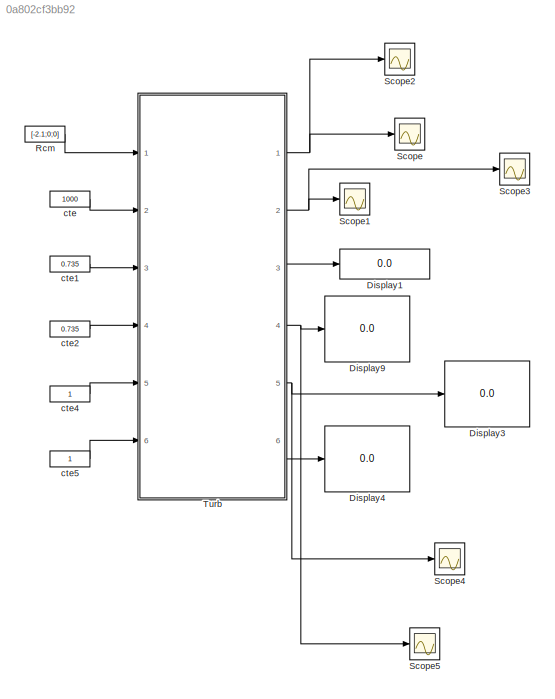
MODEL slx_0a802cf3bb92
KIND model
BLOCK [Display] Display1
  Decimation = 1
  Ports = [1]
BLOCK [Display] Display3
  Decimation = 1
  Ports = [1]
BLOCK [Display] Display4
  Decimation = 1
  Ports = [1]
BLOCK [Display] Display9
  Decimation = 1
  Ports = [1]
BLOCK [Constant] Rcm
  Value = [-2.1;0;0]
BLOCK [Scope] Scope
  DataFormat = StructureWithTime
  Floating = off
  NumInputPorts = 1
  Ports = [1]
  SampleTime = 0
  ShowLegends = off
BLOCK [Scope] Scope1
  DataFormat = StructureWithTime
  Floating = off
  NumInputPorts = 1
  Ports = [1]
  SampleTime = 0
  SaveName = ScopeData1
  ShowLegends = off
BLOCK [Scope] Scope2
  DataFormat = StructureWithTime
  Floating = off
  NumInputPorts = 1
  Ports = [1]
  SampleTime = 0
  SaveName = ScopeData2
  ShowLegends = off
BLOCK [Scope] Scope3
  DataFormat = StructureWithTime
  Floating = off
  NumInputPorts = 1
  Ports = [1]
  SampleTime = 0
  SaveName = ScopeData3
  ShowLegends = off
BLOCK [Scope] Scope4
  DataFormat = StructureWithTime
  Floating = off
  NumInputPorts = 1
  Ports = [1]
  SampleTime = 0
  SaveName = ScopeData4
  ShowLegends = off
BLOCK [Scope] Scope5
  DataFormat = StructureWithTime
  Floating = off
  NumInputPorts = 1
  Ports = [1]
  SampleTime = 0
  SaveName = ScopeData5
  ShowLegends = off
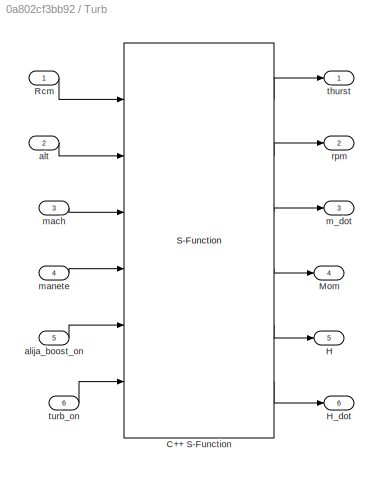
BLOCK [SubSystem] Turb
  FunctionWithSeparateData = off
  MaskHideContents = off
  MinAlgLoopOccurrences = off
  Opaque = off
  Ports = [6, 6]
  PropExecContextOutsideSubsystem = off
  RTWSystemCode = Auto
  RequestExecContextInheritance = off
  TreatAsAtomicUnit = on
BLOCK [S-Function] Turb/C++ S-Function
  EnableBusSupport = off
  FunctionName = sf_tm_turb
  Ports = [6, 6]
BLOCK [Outport] Turb/H
  IconDisplay = Port number
  Port = 5
BLOCK [Outport] Turb/H_dot
  IconDisplay = Port number
  Port = 6
BLOCK [Outport] Turb/Mom
  IconDisplay = Port number
  Port = 4
BLOCK [Inport] Turb/Rcm
  IconDisplay = Port number
BLOCK [Inport] Turb/alija_boost_on
  IconDisplay = Port number
  Port = 5
BLOCK [Inport] Turb/alt
  IconDisplay = Port number
  Port = 2
BLOCK [Outport] Turb/m_dot
  IconDisplay = Port number
  Port = 3
BLOCK [Inport] Turb/mach
  IconDisplay = Port number
  Port = 3
BLOCK [Inport] Turb/manete
  IconDisplay = Port number
  Port = 4
BLOCK [Outport] Turb/rpm
  IconDisplay = Port number
  Port = 2
BLOCK [Outport] Turb/thurst
  IconDisplay = Port number
BLOCK [Inport] Turb/turb_on
  IconDisplay = Port number
  Port = 6
BLOCK [Constant] cte
  Value = 1000
BLOCK [Constant] cte1
  Value = 0.735
BLOCK [Constant] cte2
  Value = 0.735
BLOCK [Constant] cte4
BLOCK [Constant] cte5
LINE Rcm:1 -> Turb:1
LINE Turb/C++ S-Function:1 -> Turb/thurst:1
LINE Turb/C++ S-Function:2 -> Turb/rpm:1
LINE Turb/C++ S-Function:3 -> Turb/m_dot:1
LINE Turb/C++ S-Function:4 -> Turb/Mom:1
LINE Turb/C++ S-Function:5 -> Turb/H:1
LINE Turb/C++ S-Function:6 -> Turb/H_dot:1
LINE Turb/Rcm:1 -> Turb/C++ S-Function:1
LINE Turb/alija_boost_on:1 -> Turb/C++ S-Function:5
LINE Turb/alt:1 -> Turb/C++ S-Function:2
LINE Turb/mach:1 -> Turb/C++ S-Function:3
LINE Turb/manete:1 -> Turb/C++ S-Function:4
LINE Turb/turb_on:1 -> Turb/C++ S-Function:6
NET Turb:1 -> Scope2:1, Scope:1
NET Turb:2 -> Scope1:1, Scope3:1
LINE Turb:3 -> Display1:1
NET Turb:4 -> Display9:1, Scope5:1
NET Turb:5 -> Display3:1, Scope4:1
LINE Turb:6 -> Display4:1
LINE cte1:1 -> Turb:3
LINE cte2:1 -> Turb:4
LINE cte4:1 -> Turb:5
LINE cte5:1 -> Turb:6
LINE cte:1 -> Turb:2
note: NET lines group one-source signal fan-out (src -> all destinations, sorted); 1:1 wires keep LINE
